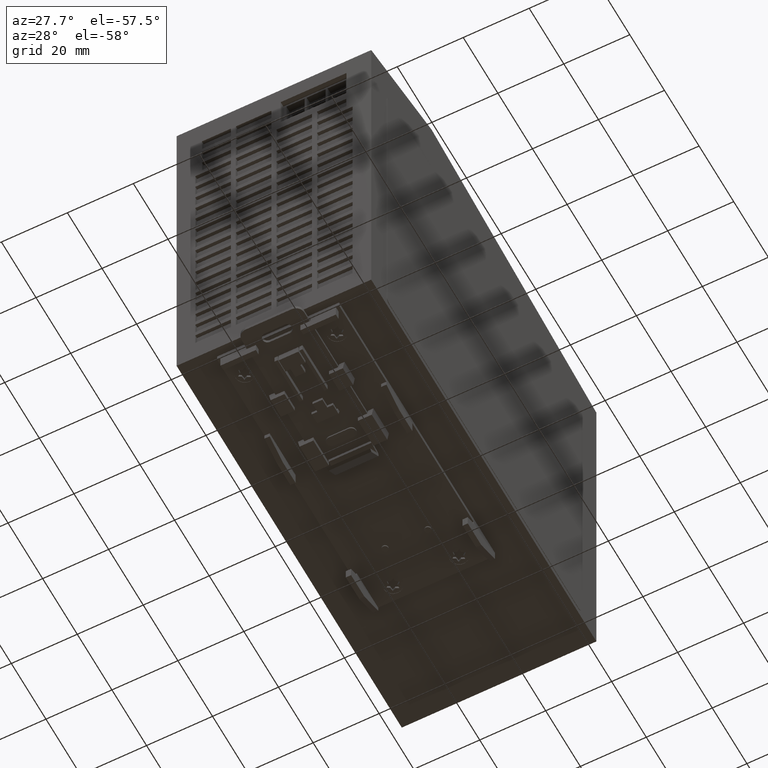
[diagram: clean part render]
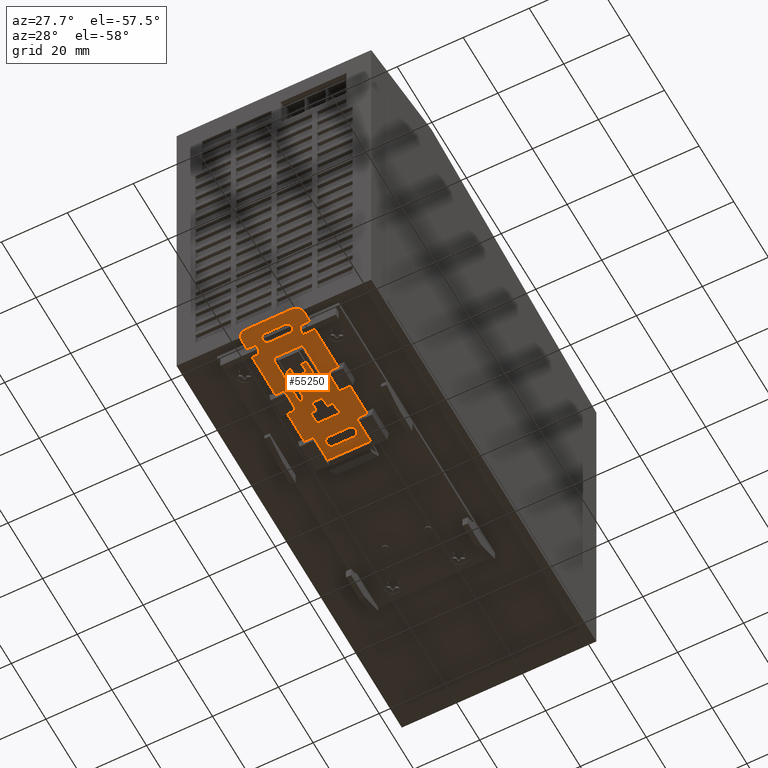
[diagram: same view with one face highlighted and labeled with its STEP entity id]
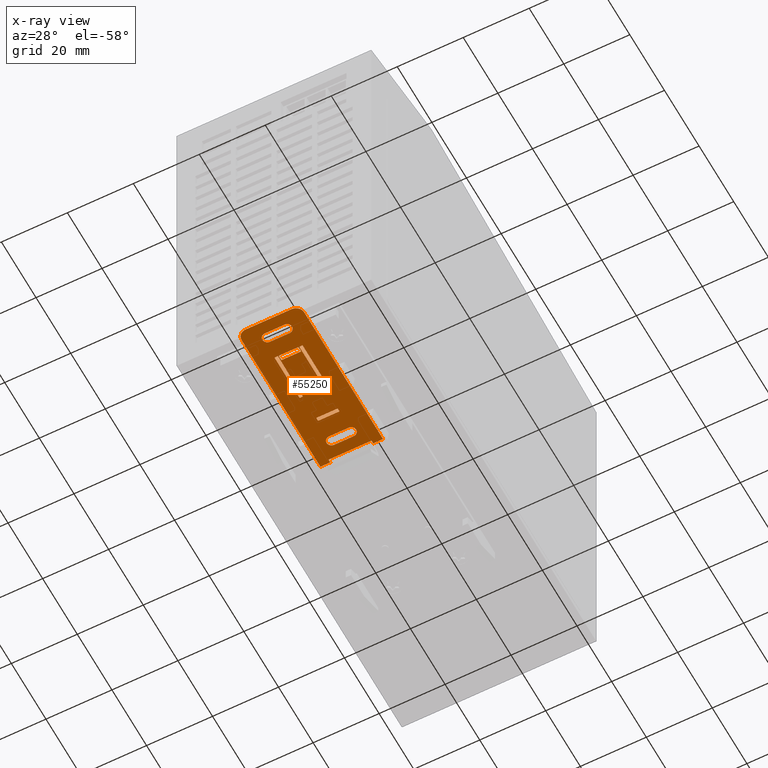
[diagram: x-ray of the same camera — body ghosted, the highlighted face saturated]
A machine part, auxiliary view. The second image highlights one B-rep face of the part: STEP entity #55250.
The next image is the same camera in x-ray: the body ghosted, the highlighted face saturated — about 0% of this face is hidden behind the body in this view.
In plain terms, the highlighted planar face has unit normal (0, -0, -1).
Its self-contained STEP definition (entity closure, byte-faithful):
#50840=CARTESIAN_POINT('',(20.,2.49999999998883,5.64456305703101));
#50850=DIRECTION('',(-1.61558713388541E-27,0.99999999999553,
-2.98985317938209E-6));
#50860=VECTOR('',#50850,1.);
#50870=LINE('',#50840,#50860);
#50880=CARTESIAN_POINT('',(20.,2.49999999998883,5.64456305703101));
#50890=VERTEX_POINT('',#50880);
#50900=CARTESIAN_POINT('',(20.,47.9999999997855,5.64442701871134));
#50910=VERTEX_POINT('',#50900);
#50920=EDGE_CURVE('',#50890,#50910,#50870,.T.);
#51450=CARTESIAN_POINT('',(36.,46.9999999997899,5.64443000856452));
#51460=VERTEX_POINT('',#51450);
#51490=CARTESIAN_POINT('',(36.,0.,5.64457053166396));
#51500=DIRECTION('',(0.,-0.99999999999553,2.98985317938209E-6));
#51510=VECTOR('',#51500,1.);
#51520=LINE('',#51490,#51510);
#51530=CARTESIAN_POINT('',(36.,47.9999999997855,5.64442701871134));
#51540=VERTEX_POINT('',#51530);
#51550=EDGE_CURVE('',#51540,#51460,#51520,.T.);
#52110=CARTESIAN_POINT('',(0.,47.9999999997855,5.64442701871134));
#52120=DIRECTION('',(-1.,-1.61558713387819E-27,4.83036832881699E-33));
#52130=VECTOR('',#52120,1.);
#52140=LINE('',#52110,#52130);
#52150=CARTESIAN_POINT('',(23.,47.9999999997855,5.64442701871134));
#52160=VERTEX_POINT('',#52150);
#52170=EDGE_CURVE('',#52160,#50910,#52140,.T.);
#52340=CARTESIAN_POINT('',(36.,47.9999999997855,5.64442701871135));
#52350=DIRECTION('',(-1.,-1.61558713387819E-27,4.83036832881609E-33));
#52360=VECTOR('',#52350,1.);
#52370=LINE('',#52340,#52360);
#52380=CARTESIAN_POINT('',(39.,47.9999999997855,5.64442701871135));
#52390=VERTEX_POINT('',#52380);
#52400=EDGE_CURVE('',#52390,#51540,#52370,.T.);
#52600=CARTESIAN_POINT('',(36.375,18.7499999999162,5.64451447191684));
#52610=DIRECTION('',(6.84227765783602E-49,-2.98985317938209E-6,
-0.99999999999553));
#52620=DIRECTION('',(-1.61558713388541E-27,0.99999999999553,
-2.98985317938209E-6));
#52630=AXIS2_PLACEMENT_3D('',#52600,#52610,#52620);
#52640=PLANE('',#52630);
#52650=CARTESIAN_POINT('',(32.5,41.9999999998123,5.64444495783042));
#52660=DIRECTION('',(6.84227765783602E-49,-2.98985317938209E-6,
-0.99999999999553));
#52670=DIRECTION('',(-0.0581772698313504,0.998306268269443,
-2.98478917019581E-6));
#52680=AXIS2_PLACEMENT_3D('',#52650,#52660,#52670);
#52690=CIRCLE('',#52680,1.5);
#52700=CARTESIAN_POINT('',(32.5,43.4999999998056,5.64444047305065));
#52710=VERTEX_POINT('',#52700);
#52720=CARTESIAN_POINT('',(32.5,40.499999999819,5.64444944261019));
#52730=VERTEX_POINT('',#52720);
#52740=EDGE_CURVE('',#52710,#52730,#52690,.T.);
#52750=ORIENTED_EDGE('',*,*,#52740,.F.);
#52760=CARTESIAN_POINT('',(0.,40.499999999819,5.64444944261019));
#52770=DIRECTION('',(1.,1.61558713387819E-27,-4.83036832881699E-33));
#52780=VECTOR('',#52770,1.);
#52790=LINE('',#52760,#52780);
#52800=CARTESIAN_POINT('',(26.5,40.499999999819,5.64444944261019));
#52810=VERTEX_POINT('',#52800);
#52820=EDGE_CURVE('',#52810,#52730,#52790,.T.);
#52830=ORIENTED_EDGE('',*,*,#52820,.T.);
#52840=CARTESIAN_POINT('',(26.5,41.9999999998123,5.64444495783042));
#52850=DIRECTION('',(6.84227765783602E-49,-2.98985317938209E-6,
-0.99999999999553));
#52860=DIRECTION('',(0.0581772698313504,-0.998306268269443,
2.98478917019581E-6));
#52870=AXIS2_PLACEMENT_3D('',#52840,#52850,#52860);
#52880=CIRCLE('',#52870,1.5);
#52890=CARTESIAN_POINT('',(26.5,43.4999999998056,5.64444047305065));
#52900=VERTEX_POINT('',#52890);
#52910=EDGE_CURVE('',#52810,#52900,#52880,.T.);
#52920=ORIENTED_EDGE('',*,*,#52910,.F.);
#52930=CARTESIAN_POINT('',(0.,43.4999999998056,5.64444047305065));
#52940=DIRECTION('',(-1.,-1.61558713387819E-27,4.83036832881699E-33));
#52950=VECTOR('',#52940,1.);
#52960=LINE('',#52930,#52950);
#52970=EDGE_CURVE('',#52710,#52900,#52960,.T.);
#52980=ORIENTED_EDGE('',*,*,#52970,.T.);
#52990=EDGE_LOOP('',(#52980,#52920,#52830,#52750));
#53000=FACE_BOUND('',#52990,.T.);
#53010=CARTESIAN_POINT('',(0.,11.4999999999486,5.64453614835239));
#53020=DIRECTION('',(1.,2.04574056097883E-54,6.84227765780544E-49));
#53030=VECTOR('',#53020,1.);
#53040=LINE('',#53010,#53030);
#53050=CARTESIAN_POINT('',(25.25,11.4999999999486,5.64453614835239));
#53060=VERTEX_POINT('',#53050);
#53070=CARTESIAN_POINT('',(26.25,11.4999999999486,5.64453614835239));
#53080=VERTEX_POINT('',#53070);
#53090=EDGE_CURVE('',#53060,#53080,#53040,.T.);
#53100=ORIENTED_EDGE('',*,*,#53090,.T.);
#53110=CARTESIAN_POINT('',(25.25,0.,5.64457053166396));
#53120=DIRECTION('',(0.,0.99999999999553,-2.98985317938209E-6));
#53130=VECTOR('',#53120,1.);
#53140=LINE('',#53110,#53130);
#53150=CARTESIAN_POINT('',(25.25,25.9999999998838,5.64449279548129));
#53160=VERTEX_POINT('',#53150);
#53170=EDGE_CURVE('',#53060,#53160,#53140,.T.);
#53180=ORIENTED_EDGE('',*,*,#53170,.F.);
#53190=CARTESIAN_POINT('',(0.,25.9999999998838,5.64449279548129));
#53200=DIRECTION('',(-1.,-2.04574056097883E-54,-6.84227765780544E-49));
#53210=VECTOR('',#53200,1.);
#53220=LINE('',#53190,#53210);
#53230=CARTESIAN_POINT('',(26.25,25.9999999998838,5.64449279548129));
#53240=VERTEX_POINT('',#53230);
#53250=EDGE_CURVE('',#53240,#53160,#53220,.T.);
#53260=ORIENTED_EDGE('',*,*,#53250,.T.);
#53270=CARTESIAN_POINT('',(26.25,0.,5.64457053166396));
#53280=DIRECTION('',(0.,0.99999999999553,-2.98985317938209E-6));
#53290=VECTOR('',#53280,1.);
#53300=LINE('',#53270,#53290);
#53310=EDGE_CURVE('',#53080,#53240,#53300,.T.);
#53320=ORIENTED_EDGE('',*,*,#53310,.T.);
#53330=EDGE_LOOP('',(#53320,#53260,#53180,#53100));
#53340=FACE_BOUND('',#53330,.T.);
#53350=CARTESIAN_POINT('',(32.5,0.,5.64457053166396));
#53360=DIRECTION('',(0.,-0.99999999999553,2.98985317938209E-6));
#53370=VECTOR('',#53360,1.);
#53380=LINE('',#53350,#53370);
#53390=CARTESIAN_POINT('',(32.5,13.0999999999415,5.64453136458731));
#53400=VERTEX_POINT('',#53390);
#53410=CARTESIAN_POINT('',(32.5,11.4999999999486,5.64453614835239));
#53420=VERTEX_POINT('',#53410);
#53430=EDGE_CURVE('',#53400,#53420,#53380,.T.);
#53440=ORIENTED_EDGE('',*,*,#53430,.F.);
#53450=CARTESIAN_POINT('',(0.,11.4999999999486,5.64453614835239));
#53460=DIRECTION('',(-1.,-2.04574056097883E-54,-6.84227765780544E-49));
#53470=VECTOR('',#53460,1.);
#53480=LINE('',#53450,#53470);
#53490=CARTESIAN_POINT('',(26.5,11.4999999999486,5.64453614835239));
#53500=VERTEX_POINT('',#53490);
#53510=EDGE_CURVE('',#53420,#53500,#53480,.T.);
#53520=ORIENTED_EDGE('',*,*,#53510,.F.);
#53530=CARTESIAN_POINT('',(26.5,0.,5.64457053166396));
#53540=DIRECTION('',(0.,-0.99999999999553,2.98985317938209E-6));
#53550=VECTOR('',#53540,1.);
#53560=LINE('',#53530,#53550);
#53570=CARTESIAN_POINT('',(26.5,13.0999999999415,5.6445313645873));
#53580=VERTEX_POINT('',#53570);
#53590=EDGE_CURVE('',#53580,#53500,#53560,.T.);
#53600=ORIENTED_EDGE('',*,*,#53590,.T.);
#53610=CARTESIAN_POINT('',(0.,13.0999999999415,5.6445313645873));
#53620=DIRECTION('',(1.,2.04574056097883E-54,6.84227765780544E-49));
#53630=VECTOR('',#53620,1.);
#53640=LINE('',#53610,#53630);
#53650=EDGE_CURVE('',#53580,#53400,#53640,.T.);
#53660=ORIENTED_EDGE('',*,*,#53650,.F.);
#53670=EDGE_LOOP('',(#53660,#53600,#53520,#53440));
#53680=FACE_BOUND('',#53670,.T.);
#53690=CARTESIAN_POINT('',(0.,11.4999999999486,5.64453614835239));
#53700=DIRECTION('',(1.,2.04574056097883E-54,6.84227765780544E-49));
#53710=VECTOR('',#53700,1.);
#53720=LINE('',#53690,#53710);
#53730=CARTESIAN_POINT('',(32.75,11.4999999999486,5.64453614835239));
#53740=VERTEX_POINT('',#53730);
#53750=CARTESIAN_POINT('',(33.75,11.4999999999486,5.64453614835239));
#53760=VERTEX_POINT('',#53750);
#53770=EDGE_CURVE('',#53740,#53760,#53720,.T.);
#53780=ORIENTED_EDGE('',*,*,#53770,.T.);
#53790=CARTESIAN_POINT('',(32.75,0.,5.64457053166396));
#53800=DIRECTION('',(0.,-0.99999999999553,2.98985317938209E-6));
#53810=VECTOR('',#53800,1.);
#53820=LINE('',#53790,#53810);
#53830=CARTESIAN_POINT('',(32.75,25.9999999998838,5.64449279548129));
#53840=VERTEX_POINT('',#53830);
#53850=EDGE_CURVE('',#53840,#53740,#53820,.T.);
#53860=ORIENTED_EDGE('',*,*,#53850,.T.);
#53870=CARTESIAN_POINT('',(0.,25.9999999998838,5.64449279548129));
#53880=DIRECTION('',(-1.,-2.04574056097883E-54,-6.84227765780544E-49));
#53890=VECTOR('',#53880,1.);
#53900=LINE('',#53870,#53890);
#53910=CARTESIAN_POINT('',(33.75,25.9999999998838,5.64449279548129));
#53920=VERTEX_POINT('',#53910);
#53930=EDGE_CURVE('',#53920,#53840,#53900,.T.);
#53940=ORIENTED_EDGE('',*,*,#53930,.T.);
#53950=CARTESIAN_POINT('',(33.75,0.,5.64457053166396));
#53960=DIRECTION('',(0.,-0.99999999999553,2.98985317938209E-6));
#53970=VECTOR('',#53960,1.);
#53980=LINE('',#53950,#53970);
#53990=EDGE_CURVE('',#53920,#53760,#53980,.T.);
#54000=ORIENTED_EDGE('',*,*,#53990,.F.);
#54010=EDGE_LOOP('',(#54000,#53940,#53860,#53780));
#54020=FACE_BOUND('',#54010,.T.);
#54030=CARTESIAN_POINT('',(0.,6.49999999997095,5.64455109761829));
#54040=DIRECTION('',(-1.,-2.04574056097883E-54,-6.84227765780544E-49));
#54050=VECTOR('',#54040,1.);
#54060=LINE('',#54030,#54050);
#54070=CARTESIAN_POINT('',(32.5,6.49999999997095,5.64455109761829));
#54080=VERTEX_POINT('',#54070);
#54090=CARTESIAN_POINT('',(26.5,6.49999999997095,5.64455109761829));
#54100=VERTEX_POINT('',#54090);
#54110=EDGE_CURVE('',#54080,#54100,#54060,.T.);
#54120=ORIENTED_EDGE('',*,*,#54110,.T.);
#54130=CARTESIAN_POINT('',(32.5,4.99999999997765,5.64455558239806));
#54140=DIRECTION('',(0.,-2.98985317938209E-6,-0.99999999999553));
#54150=DIRECTION('',(0.,0.99999999999553,-2.98985317938209E-6));
#54160=AXIS2_PLACEMENT_3D('',#54130,#54140,#54150);
#54170=CIRCLE('',#54160,1.5);
#54180=CARTESIAN_POINT('',(32.5,3.49999999998436,5.64456006717783));
#54190=VERTEX_POINT('',#54180);
#54200=EDGE_CURVE('',#54080,#54190,#54170,.T.);
#54210=ORIENTED_EDGE('',*,*,#54200,.F.);
#54220=CARTESIAN_POINT('',(0.,3.49999999998435,5.64456006717783));
#54230=DIRECTION('',(1.,2.04574056097883E-54,6.84227765780544E-49));
#54240=VECTOR('',#54230,1.);
#54250=LINE('',#54220,#54240);
#54260=CARTESIAN_POINT('',(26.5,3.49999999998436,5.64456006717783));
#54270=VERTEX_POINT('',#54260);
#54280=EDGE_CURVE('',#54270,#54190,#54250,.T.);
#54290=ORIENTED_EDGE('',*,*,#54280,.T.);
#54300=CARTESIAN_POINT('',(26.5,4.99999999997765,5.64455558239806));
#54310=DIRECTION('',(0.,-2.98985317938209E-6,-0.99999999999553));
#54320=DIRECTION('',(0.,-0.99999999999553,2.98985317938209E-6));
#54330=AXIS2_PLACEMENT_3D('',#54300,#54310,#54320);
#54340=CIRCLE('',#54330,1.5);
#54350=EDGE_CURVE('',#54270,#54100,#54340,.T.);
#54360=ORIENTED_EDGE('',*,*,#54350,.F.);
#54370=EDGE_LOOP('',(#54360,#54290,#54210,#54120));
#54380=FACE_BOUND('',#54370,.T.);
#54390=CARTESIAN_POINT('',(0.,33.7320508074181,5.6444696777846));
#54400=DIRECTION('',(1.,1.83340323020388E-49,6.84227217626013E-49));
#54410=VECTOR('',#54400,1.);
#54420=LINE('',#54390,#54410);
#54430=CARTESIAN_POINT('',(26.25,33.7320508074181,5.6444696777846));
#54440=VERTEX_POINT('',#54430);
#54450=CARTESIAN_POINT('',(32.75,33.7320508074181,5.6444696777846));
#54460=VERTEX_POINT('',#54450);
#54470=EDGE_CURVE('',#54440,#54460,#54420,.T.);
#54480=ORIENTED_EDGE('',*,*,#54470,.T.);
#54490=CARTESIAN_POINT('',(26.25,0.,5.64457053166396));
#54500=DIRECTION('',(0.,0.99999999999553,-2.98985317938209E-6));
#54510=VECTOR('',#54500,1.);
#54520=LINE('',#54490,#54510);
#54530=CARTESIAN_POINT('',(26.25,34.7673269878245,5.64446658246082));
#54540=VERTEX_POINT('',#54530);
#54550=EDGE_CURVE('',#54440,#54540,#54520,.T.);
#54560=ORIENTED_EDGE('',*,*,#54550,.F.);
#54570=CARTESIAN_POINT('',(0.,34.7673269878245,5.64446658246082));
#54580=DIRECTION('',(-1.,-1.83340323020388E-49,-6.84227217626013E-49));
#54590=VECTOR('',#54580,1.);
#54600=LINE('',#54570,#54590);
#54610=CARTESIAN_POINT('',(32.75,34.7673269878245,5.64446658246082));
#54620=VERTEX_POINT('',#54610);
#54630=EDGE_CURVE('',#54620,#54540,#54600,.T.);
#54640=ORIENTED_EDGE('',*,*,#54630,.T.);
#54650=CARTESIAN_POINT('',(32.75,0.,5.64457053166396));
#54660=DIRECTION('',(0.,-0.99999999999553,2.98985317938209E-6));
#54670=VECTOR('',#54660,1.);
#54680=LINE('',#54650,#54670);
#54690=EDGE_CURVE('',#54620,#54460,#54680,.T.);
#54700=ORIENTED_EDGE('',*,*,#54690,.F.);
#54710=EDGE_LOOP('',(#54700,#54640,#54560,#54480));
#54720=FACE_BOUND('',#54710,.T.);
#54730=CARTESIAN_POINT('',(36.5,-3.5527136788005E-15,5.64457053166396));
#54740=DIRECTION('',(-1.,-1.61558713387819E-27,4.83036832881609E-33));
#54750=VECTOR('',#54740,1.);
#54760=LINE('',#54730,#54750);
#54770=CARTESIAN_POINT('',(36.5,0.,5.64457053166396));
#54780=VERTEX_POINT('',#54770);
#54790=CARTESIAN_POINT('',(22.5,0.,5.64457053166396));
#54800=VERTEX_POINT('',#54790);
#54810=EDGE_CURVE('',#54780,#54800,#54760,.T.);
#54820=ORIENTED_EDGE('',*,*,#54810,.T.);
#54830=CARTESIAN_POINT('',(36.5,2.49999999998883,5.64456305703101));
#54840=DIRECTION('',(-6.84227765783602E-49,2.98985317938209E-6,
0.99999999999553));
#54850=DIRECTION('',(1.61558713388541E-27,-0.99999999999553,
2.98985317938209E-6));
#54860=AXIS2_PLACEMENT_3D('',#54830,#54840,#54850);
#54870=CIRCLE('',#54860,2.5);
#54880=CARTESIAN_POINT('',(39.,2.49999999998883,5.64456305703101));
#54890=VERTEX_POINT('',#54880);
#54900=EDGE_CURVE('',#54780,#54890,#54870,.T.);
#54910=ORIENTED_EDGE('',*,*,#54900,.F.);
#54920=CARTESIAN_POINT('',(39.,13.9999999999374,5.64452867371944));
#54930=DIRECTION('',(1.61558713388541E-27,-0.99999999999553,
2.98985317938209E-6));
#54940=VECTOR('',#54930,1.);
#54950=LINE('',#54920,#54940);
#54960=EDGE_CURVE('',#52390,#54890,#54950,.T.);
#54970=ORIENTED_EDGE('',*,*,#54960,.T.);
#54980=ORIENTED_EDGE('',*,*,#52400,.F.);
#54990=ORIENTED_EDGE('',*,*,#51550,.F.);
#55000=CARTESIAN_POINT('',(0.,46.9999999997899,5.64443000856452));
#55010=DIRECTION('',(1.,2.04574056097883E-54,6.84227765780544E-49));
#55020=VECTOR('',#55010,1.);
#55030=LINE('',#55000,#55020);
#55040=CARTESIAN_POINT('',(23.,46.9999999997899,5.64443000856452));
#55050=VERTEX_POINT('',#55040);
#55060=EDGE_CURVE('',#55050,#51460,#55030,.T.);
#55070=ORIENTED_EDGE('',*,*,#55060,.T.);
#55080=CARTESIAN_POINT('',(23.,0.,5.64457053166396));
#55090=DIRECTION('',(0.,-0.99999999999553,2.98985317938209E-6));
#55100=VECTOR('',#55090,1.);
#55110=LINE('',#55080,#55100);
#55120=EDGE_CURVE('',#52160,#55050,#55110,.T.);
#55130=ORIENTED_EDGE('',*,*,#55120,.T.);
#55140=ORIENTED_EDGE('',*,*,#52170,.F.);
#55150=ORIENTED_EDGE('',*,*,#50920,.T.);
#55160=CARTESIAN_POINT('',(22.5,2.49999999998883,5.64456305703101));
#55170=DIRECTION('',(-6.84227765783602E-49,2.98985317938209E-6,
0.99999999999553));
#55180=DIRECTION('',(-1.,-1.61558713387819E-27,4.83036832881609E-33));
#55190=AXIS2_PLACEMENT_3D('',#55160,#55170,#55180);
#55200=CIRCLE('',#55190,2.5);
#55210=EDGE_CURVE('',#50890,#54800,#55200,.T.);
#55220=ORIENTED_EDGE('',*,*,#55210,.F.);
#55230=EDGE_LOOP('',(#55220,#55150,#55140,#55130,#55070,#54990,#54980,
#54970,#54910,#54820));
#55240=FACE_OUTER_BOUND('',#55230,.T.);
#55250=ADVANCED_FACE('',(#53000,#53340,#53680,#54020,#54380,#54720,
#55240),#52640,.T.);